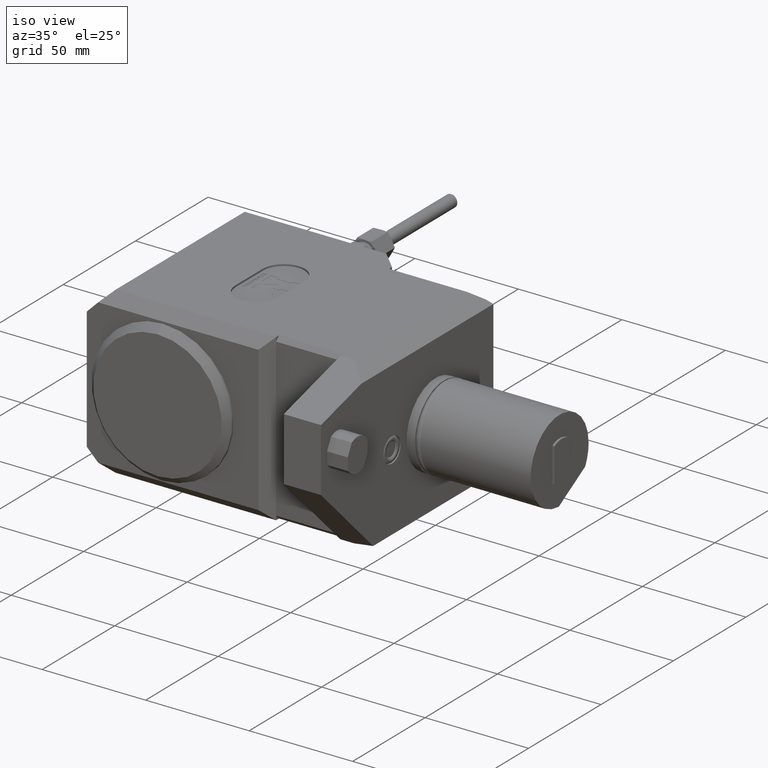
[diagram: clean part render]
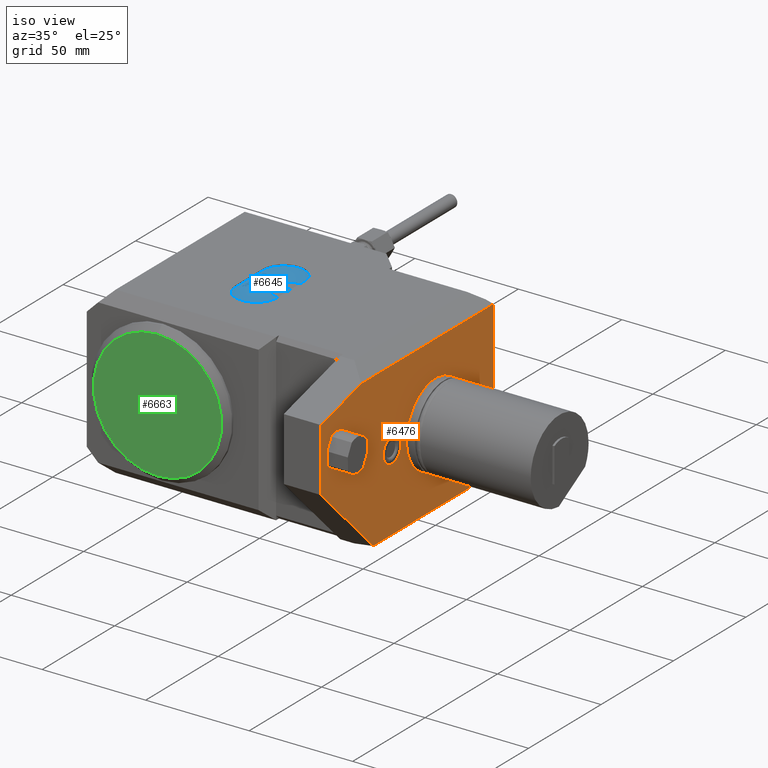
[diagram: same view with three faces highlighted in distinct colors, each labeled with its STEP entity id]
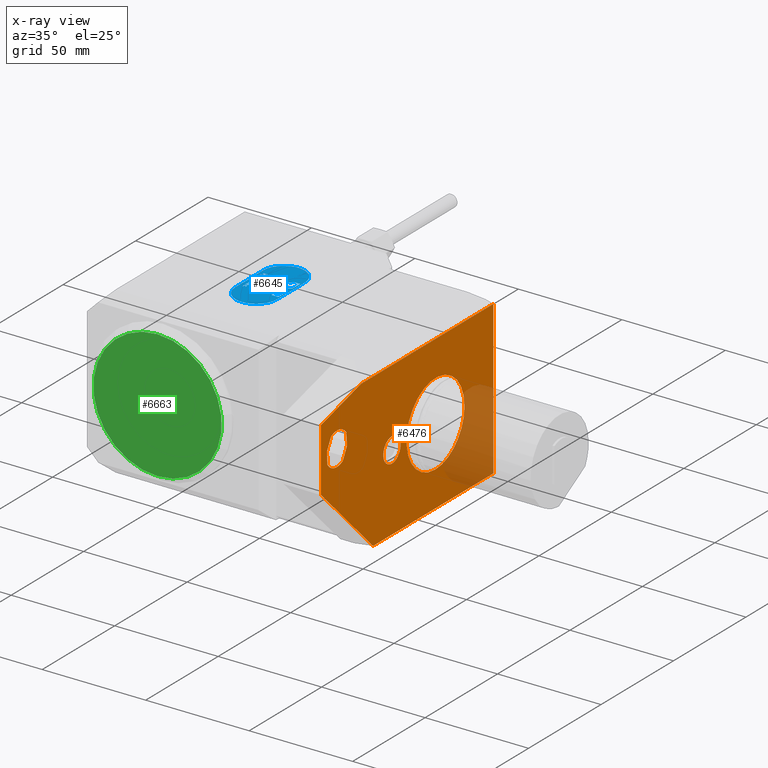
[diagram: x-ray of the same camera — body ghosted, the three highlighted faces saturated]
A machine part, iso view with three faces highlighted in distinct colors.
The next image is the same camera in x-ray (body ghosted, the three faces saturated) — at least one of them is partly hidden behind the body in this view.
Their STEP definitions:

[orange] entity #6476 — the highlighted planar face has unit normal (1, -0, 0).
#316=LINE('',#9708,#872);
#318=LINE('',#9712,#874);
#321=LINE('',#9718,#877);
#326=LINE('',#9729,#882);
#330=LINE('',#9737,#886);
#347=LINE('',#9770,#903);
#348=LINE('',#9775,#904);
#349=LINE('',#9777,#905);
#350=LINE('',#9781,#906);
#351=LINE('',#9782,#907);
#872=VECTOR('',#7694,1000.);
#874=VECTOR('',#7698,1000.);
#877=VECTOR('',#7703,1000.);
#882=VECTOR('',#7710,1000.);
#886=VECTOR('',#7716,1000.);
#903=VECTOR('',#7743,1000.);
#904=VECTOR('',#7746,1000.);
#905=VECTOR('',#7747,1000.);
#906=VECTOR('',#7750,1000.);
#907=VECTOR('',#7751,1000.);
#1403=PLANE('',#6920);
#1876=ORIENTED_EDGE('',*,*,#3683,.T.);
#1877=ORIENTED_EDGE('',*,*,#3684,.F.);
#1878=ORIENTED_EDGE('',*,*,#3685,.T.);
#1879=ORIENTED_EDGE('',*,*,#3686,.T.);
#1880=ORIENTED_EDGE('',*,*,#3687,.F.);
#1881=ORIENTED_EDGE('',*,*,#3688,.T.);
#1882=ORIENTED_EDGE('',*,*,#3666,.F.);
#1883=ORIENTED_EDGE('',*,*,#3662,.T.);
#1884=ORIENTED_EDGE('',*,*,#3689,.T.);
#1885=ORIENTED_EDGE('',*,*,#3657,.F.);
#1886=ORIENTED_EDGE('',*,*,#3654,.F.);
#1887=ORIENTED_EDGE('',*,*,#3652,.F.);
#1888=ORIENTED_EDGE('',*,*,#3690,.T.);
#1889=ORIENTED_EDGE('',*,*,#3650,.F.);
#3650=EDGE_CURVE('',#4581,#4581,#5167,.T.);
#3652=EDGE_CURVE('',#4582,#4583,#316,.T.);
#3654=EDGE_CURVE('',#4583,#4584,#318,.T.);
#3657=EDGE_CURVE('',#4584,#4586,#321,.T.);
#3662=EDGE_CURVE('',#4591,#4590,#326,.T.);
#3666=EDGE_CURVE('',#4591,#4582,#330,.T.);
#3683=EDGE_CURVE('',#4605,#4606,#347,.T.);
#3684=EDGE_CURVE('',#4607,#4606,#5168,.F.);
#3685=EDGE_CURVE('',#4607,#4608,#348,.T.);
#3686=EDGE_CURVE('',#4608,#4609,#349,.T.);
#3687=EDGE_CURVE('',#4610,#4609,#5169,.F.);
#3688=EDGE_CURVE('',#4610,#4605,#350,.T.);
#3689=EDGE_CURVE('',#4590,#4586,#351,.T.);
#3690=EDGE_CURVE('',#4611,#4611,#5170,.T.);
#4581=VERTEX_POINT('',#9704);
#4582=VERTEX_POINT('',#9707);
#4583=VERTEX_POINT('',#9709);
#4584=VERTEX_POINT('',#9713);
#4586=VERTEX_POINT('',#9719);
#4590=VERTEX_POINT('',#9728);
#4591=VERTEX_POINT('',#9730);
#4605=VERTEX_POINT('',#9771);
#4606=VERTEX_POINT('',#9772);
#4607=VERTEX_POINT('',#9774);
#4608=VERTEX_POINT('',#9776);
#4609=VERTEX_POINT('',#9778);
#4610=VERTEX_POINT('',#9780);
#4611=VERTEX_POINT('',#9784);
#5167=CIRCLE('',#6910,20.);
#5168=CIRCLE('',#6921,8.);
#5169=CIRCLE('',#6922,8.);
#5170=CIRCLE('',#6923,6.);
#5429=EDGE_LOOP('',(#1876,#1877,#1878,#1879,#1880,#1881));
#5430=EDGE_LOOP('',(#1882,#1883,#1884,#1885,#1886,#1887));
#5431=EDGE_LOOP('',(#1888));
#5432=EDGE_LOOP('',(#1889));
#5895=FACE_BOUND('',#5429,.T.);
#5896=FACE_BOUND('',#5430,.T.);
#5897=FACE_BOUND('',#5431,.T.);
#5898=FACE_BOUND('',#5432,.T.);
#6476=ADVANCED_FACE('',(#5895,#5896,#5897,#5898),#1403,.T.);
#6910=AXIS2_PLACEMENT_3D('',#9703,#7689,#7690);
#6920=AXIS2_PLACEMENT_3D('',#9769,#7741,#7742);
#6921=AXIS2_PLACEMENT_3D('',#9773,#7744,#7745);
#6922=AXIS2_PLACEMENT_3D('',#9779,#7748,#7749);
#6923=AXIS2_PLACEMENT_3D('',#9783,#7752,#7753);
#7689=DIRECTION('',(1.,-3.74927562856021E-33,6.12303176911189E-17));
#7690=DIRECTION('',(6.12303176911189E-17,0.,-1.));
#7694=DIRECTION('',(-6.12303176911189E-17,0.,1.));
#7698=DIRECTION('',(-1.58475723561394E-17,0.965925826289068,0.258819045102521));
#7703=DIRECTION('',(0.,1.,0.));
#7710=DIRECTION('',(0.,1.,0.));
#7716=DIRECTION('',(-4.32963728535968E-17,-0.707106781186548,0.707106781186548));
#7741=DIRECTION('',(1.,-3.74927562856021E-33,6.12303176911189E-17));
#7742=DIRECTION('',(6.12303176911189E-17,6.12323399573677E-17,-1.));
#7743=DIRECTION('',(-7.93735907606289E-18,-0.460819484650431,-0.887493888748824));
#7744=DIRECTION('',(-1.,-5.02253243704925E-17,3.5022401351623E-17));
#7745=DIRECTION('',(-2.33807550933174E-17,-0.215417120660777,-0.976522126798067));
#7746=DIRECTION('',(3.72307912894869E-17,-0.0446655641082858,0.999001995685138));
#7747=DIRECTION('',(7.93735907606299E-18,0.460819484650431,0.887493888748824));
#7748=DIRECTION('',(-1.,-5.02253243704925E-17,3.5022401351623E-17));
#7749=DIRECTION('',(-2.33807550933174E-17,-0.215417120660777,-0.976522126798067));
#7750=DIRECTION('',(-3.7230791289487E-17,0.0446655641082858,-0.999001995685138));
#7751=DIRECTION('',(-6.12303176911189E-17,0.,1.));
#7752=DIRECTION('',(-1.,3.74927562856021E-33,-6.12303176911189E-17));
#7753=DIRECTION('',(6.12303176911189E-17,6.12323399573677E-17,-1.));
#9703=CARTESIAN_POINT('',(0.,0.,0.));
#9704=CARTESIAN_POINT('',(1.22460635382238E-15,0.,-20.));
#9707=CARTESIAN_POINT('',(3.06151588455588E-17,-79.,-0.999999999999984));
#9708=CARTESIAN_POINT('',(1.53075794227797E-15,-79.,-25.));
#9709=CARTESIAN_POINT('',(-9.04677377358467E-16,-79.,29.5499814951862));
#9712=CARTESIAN_POINT('',(-3.25413578685274E-15,9.06088913245534,53.1458256229943));
#9713=CARTESIAN_POINT('',(-2.2655217545714E-15,-51.1961524227067,37.));
#9718=CARTESIAN_POINT('',(3.46944695195361E-15,-140.11662888251,37.));
#9719=CARTESIAN_POINT('',(-6.41274211529101E-15,40.,37.));
#9728=CARTESIAN_POINT('',(3.46944695195361E-15,40.,-37.));
#9729=CARTESIAN_POINT('',(3.46944695195361E-15,-140.11662888251,-37.));
#9730=CARTESIAN_POINT('',(4.60220782923931E-15,-43.,-37.));
#9737=CARTESIAN_POINT('',(4.13304644415052E-15,-12.5,-67.5));
#9769=CARTESIAN_POINT('',(1.53075794227797E-15,30.,-25.));
#9770=CARTESIAN_POINT('',(0.,-62.2973992727412,11.3099271075818));
#9771=CARTESIAN_POINT('',(-8.26124354227628E-16,-61.1643451124135,13.4920801553746));
#9772=CARTESIAN_POINT('',(4.23135742816056E-16,-63.9695943339361,8.08944067625784));
#9773=CARTESIAN_POINT('',(0.,-68.,15.));
#9774=CARTESIAN_POINT('',(-6.3841620504812E-16,-74.5637522378132,10.4264721974604));
#9775=CARTESIAN_POINT('',(0.,-74.7836335436549,15.3443965030211));
#9776=CARTESIAN_POINT('',(0.,-74.8356548875865,16.5079198446254));
#9777=CARTESIAN_POINT('',(0.,-74.2989450221681,17.5415712883168));
#9778=CARTESIAN_POINT('',(-1.34159050818284E-15,-72.030405666064,21.9105593237422));
#9779=CARTESIAN_POINT('',(0.,-68.,15.));
#9780=CARTESIAN_POINT('',(-2.80038560318667E-16,-61.4362477621869,19.5735278025396));
#9781=CARTESIAN_POINT('',(0.,-61.2741679496025,15.9484072098726));
#9782=CARTESIAN_POINT('',(-6.93889390390723E-15,40.,40.));
#9783=CARTESIAN_POINT('',(1.69785183912934E-31,-30.,-5.3270983071148E-15));
#9784=CARTESIAN_POINT('',(3.67381906146714E-16,-30.,-6.00000000000001));

[blue] entity #6645 — the highlighted planar face has unit normal (-0, 0, 1).
#397=LINE('',#10213,#953);
#400=LINE('',#10219,#956);
#403=LINE('',#10227,#959);
#405=LINE('',#10231,#961);
#407=LINE('',#10235,#963);
#410=LINE('',#10243,#966);
#421=LINE('',#10270,#977);
#424=LINE('',#10276,#980);
#426=LINE('',#10280,#982);
#428=LINE('',#10284,#984);
#430=LINE('',#10288,#986);
#433=LINE('',#10296,#989);
#435=LINE('',#10300,#991);
#437=LINE('',#10304,#993);
#440=LINE('',#10312,#996);
#442=LINE('',#10316,#998);
#454=LINE('',#10349,#1010);
#456=LINE('',#10353,#1012);
#459=LINE('',#10361,#1015);
#461=LINE('',#10365,#1017);
#463=LINE('',#10369,#1019);
#466=LINE('',#10377,#1022);
#468=LINE('',#10381,#1024);
#470=LINE('',#10385,#1026);
#473=LINE('',#10395,#1029);
#482=LINE('',#10418,#1038);
#485=LINE('',#10424,#1041);
#487=LINE('',#10428,#1043);
#489=LINE('',#10432,#1045);
#492=LINE('',#10440,#1048);
#494=LINE('',#10444,#1050);
#496=LINE('',#10448,#1052);
#499=LINE('',#10456,#1055);
#504=LINE('',#10467,#1060);
#507=LINE('',#10473,#1063);
#509=LINE('',#10477,#1065);
#511=LINE('',#10481,#1067);
#520=LINE('',#10514,#1076);
#523=LINE('',#10523,#1079);
#529=LINE('',#10544,#1085);
#531=LINE('',#10548,#1087);
#533=LINE('',#10554,#1089);
#542=LINE('',#10581,#1098);
#545=LINE('',#10590,#1101);
#554=LINE('',#10610,#1110);
#557=LINE('',#10616,#1113);
#559=LINE('',#10620,#1115);
#561=LINE('',#10624,#1117);
#563=LINE('',#10628,#1119);
#565=LINE('',#10632,#1121);
#567=LINE('',#10636,#1123);
#569=LINE('',#10640,#1125);
#584=LINE('',#10684,#1140);
#593=LINE('',#10702,#1149);
#596=LINE('',#10710,#1152);
#599=LINE('',#10718,#1155);
#601=LINE('',#10722,#1157);
#603=LINE('',#10726,#1159);
#624=LINE('',#10769,#1180);
#627=LINE('',#10775,#1183);
#629=LINE('',#10779,#1185);
#631=LINE('',#10783,#1187);
#633=LINE('',#10787,#1189);
#635=LINE('',#10791,#1191);
#637=LINE('',#10795,#1193);
#639=LINE('',#10799,#1195);
#641=LINE('',#10803,#1197);
#643=LINE('',#10807,#1199);
#645=LINE('',#10811,#1201);
#647=LINE('',#10815,#1203);
#649=LINE('',#10819,#1205);
#651=LINE('',#10823,#1207);
#653=LINE('',#10827,#1209);
#655=LINE('',#10831,#1211);
#657=LINE('',#10835,#1213);
#659=LINE('',#10839,#1215);
#661=LINE('',#10843,#1217);
#663=LINE('',#10847,#1219);
#664=LINE('',#10849,#1220);
#669=LINE('',#10864,#1225);
#953=VECTOR('',#7931,1000.);
#956=VECTOR('',#7936,1000.);
#959=VECTOR('',#7945,1000.);
#961=VECTOR('',#7949,1000.);
#963=VECTOR('',#7953,1000.);
#966=VECTOR('',#7962,1000.);
#977=VECTOR('',#7981,1000.);
#980=VECTOR('',#7986,1000.);
#982=VECTOR('',#7990,1000.);
#984=VECTOR('',#7994,1000.);
#986=VECTOR('',#7998,1000.);
#989=VECTOR('',#8007,1000.);
#991=VECTOR('',#8011,1000.);
#993=VECTOR('',#8015,1000.);
#996=VECTOR('',#8024,1000.);
#998=VECTOR('',#8028,1000.);
#1010=VECTOR('',#8052,1000.);
#1012=VECTOR('',#8056,1000.);
#1015=VECTOR('',#8065,1000.);
#1017=VECTOR('',#8069,1000.);
#1019=VECTOR('',#8073,1000.);
#1022=VECTOR('',#8082,1000.);
#1024=VECTOR('',#8086,1000.);
#1026=VECTOR('',#8090,1000.);
#1029=VECTOR('',#8103,1000.);
#1038=VECTOR('',#8120,1000.);
#1041=VECTOR('',#8125,1000.);
#1043=VECTOR('',#8129,1000.);
#1045=VECTOR('',#8133,1000.);
#1048=VECTOR('',#8142,1000.);
#1050=VECTOR('',#8146,1000.);
#1052=VECTOR('',#8150,1000.);
#1055=VECTOR('',#8159,1000.);
#1060=VECTOR('',#8168,1000.);
#1063=VECTOR('',#8173,1000.);
#1065=VECTOR('',#8177,1000.);
#1067=VECTOR('',#8181,1000.);
#1076=VECTOR('',#8214,1000.);
#1079=VECTOR('',#8225,1000.);
#1085=VECTOR('',#8245,1000.);
#1087=VECTOR('',#8249,1000.);
#1089=VECTOR('',#8257,1000.);
#1098=VECTOR('',#8282,1000.);
#1101=VECTOR('',#8293,1000.);
#1110=VECTOR('',#8308,1000.);
#1113=VECTOR('',#8313,1000.);
#1115=VECTOR('',#8317,1000.);
#1117=VECTOR('',#8321,1000.);
#1119=VECTOR('',#8325,1000.);
#1121=VECTOR('',#8329,1000.);
#1123=VECTOR('',#8333,1000.);
#1125=VECTOR('',#8337,1000.);
#1140=VECTOR('',#8370,1000.);
#1149=VECTOR('',#8393,1000.);
#1152=VECTOR('',#8402,1000.);
#1155=VECTOR('',#8411,1000.);
#1157=VECTOR('',#8415,1000.);
#1159=VECTOR('',#8419,1000.);
#1180=VECTOR('',#8444,1000.);
#1183=VECTOR('',#8449,1000.);
#1185=VECTOR('',#8453,1000.);
#1187=VECTOR('',#8457,1000.);
#1189=VECTOR('',#8461,1000.);
#1191=VECTOR('',#8465,1000.);
#1193=VECTOR('',#8469,1000.);
#1195=VECTOR('',#8473,1000.);
#1197=VECTOR('',#8477,1000.);
#1199=VECTOR('',#8481,1000.);
#1201=VECTOR('',#8485,1000.);
#1203=VECTOR('',#8489,1000.);
#1205=VECTOR('',#8493,1000.);
#1207=VECTOR('',#8497,1000.);
#1209=VECTOR('',#8501,1000.);
#1211=VECTOR('',#8505,1000.);
#1213=VECTOR('',#8509,1000.);
#1215=VECTOR('',#8513,1000.);
#1217=VECTOR('',#8517,1000.);
#1219=VECTOR('',#8521,1000.);
#1220=VECTOR('',#8524,1000.);
#1225=VECTOR('',#8537,1000.);
#1535=PLANE('',#7160);
#2616=ORIENTED_EDGE('',*,*,#3832,.F.);
#2617=ORIENTED_EDGE('',*,*,#3809,.F.);
#2618=ORIENTED_EDGE('',*,*,#3812,.F.);
#2619=ORIENTED_EDGE('',*,*,#3814,.F.);
#2620=ORIENTED_EDGE('',*,*,#3816,.F.);
#2621=ORIENTED_EDGE('',*,*,#3818,.F.);
#2622=ORIENTED_EDGE('',*,*,#3820,.F.);
#2623=ORIENTED_EDGE('',*,*,#3822,.F.);
#2624=ORIENTED_EDGE('',*,*,#3824,.F.);
#2625=ORIENTED_EDGE('',*,*,#3826,.F.);
#2626=ORIENTED_EDGE('',*,*,#3828,.F.);
#2627=ORIENTED_EDGE('',*,*,#3830,.F.);
#2628=ORIENTED_EDGE('',*,*,#3942,.T.);
#2629=ORIENTED_EDGE('',*,*,#3947,.T.);
#2630=ORIENTED_EDGE('',*,*,#3946,.T.);
#2631=ORIENTED_EDGE('',*,*,#3944,.T.);
#2632=ORIENTED_EDGE('',*,*,#3848,.T.);
#2633=ORIENTED_EDGE('',*,*,#3871,.T.);
#2634=ORIENTED_EDGE('',*,*,#3870,.T.);
#2635=ORIENTED_EDGE('',*,*,#3868,.T.);
#2636=ORIENTED_EDGE('',*,*,#3866,.T.);
#2637=ORIENTED_EDGE('',*,*,#3864,.T.);
#2638=ORIENTED_EDGE('',*,*,#3862,.T.);
#2639=ORIENTED_EDGE('',*,*,#3860,.T.);
#2640=ORIENTED_EDGE('',*,*,#3858,.T.);
#2641=ORIENTED_EDGE('',*,*,#3856,.T.);
#2642=ORIENTED_EDGE('',*,*,#3854,.T.);
#2643=ORIENTED_EDGE('',*,*,#3852,.T.);
#2644=ORIENTED_EDGE('',*,*,#3850,.T.);
#2645=ORIENTED_EDGE('',*,*,#3913,.F.);
#2646=ORIENTED_EDGE('',*,*,#3906,.F.);
#2647=ORIENTED_EDGE('',*,*,#3909,.F.);
#2648=ORIENTED_EDGE('',*,*,#3911,.F.);
#2649=ORIENTED_EDGE('',*,*,#3915,.T.);
#2650=ORIENTED_EDGE('',*,*,#4031,.F.);
#2651=ORIENTED_EDGE('',*,*,#4010,.F.);
#2652=ORIENTED_EDGE('',*,*,#4019,.F.);
#2653=ORIENTED_EDGE('',*,*,#4021,.F.);
#2654=ORIENTED_EDGE('',*,*,#4023,.F.);
#2655=ORIENTED_EDGE('',*,*,#4025,.F.);
#2656=ORIENTED_EDGE('',*,*,#4027,.F.);
#2657=ORIENTED_EDGE('',*,*,#4029,.F.);
#2658=ORIENTED_EDGE('',*,*,#4091,.F.);
#2659=ORIENTED_EDGE('',*,*,#4052,.F.);
#2660=ORIENTED_EDGE('',*,*,#4055,.F.);
#2661=ORIENTED_EDGE('',*,*,#4057,.F.);
#2662=ORIENTED_EDGE('',*,*,#4059,.F.);
#2663=ORIENTED_EDGE('',*,*,#4061,.F.);
#2664=ORIENTED_EDGE('',*,*,#4063,.F.);
#2665=ORIENTED_EDGE('',*,*,#4065,.F.);
#2666=ORIENTED_EDGE('',*,*,#4067,.F.);
#2667=ORIENTED_EDGE('',*,*,#4069,.F.);
#2668=ORIENTED_EDGE('',*,*,#4071,.F.);
#2669=ORIENTED_EDGE('',*,*,#4073,.F.);
#2670=ORIENTED_EDGE('',*,*,#4075,.F.);
#2671=ORIENTED_EDGE('',*,*,#4077,.F.);
#2672=ORIENTED_EDGE('',*,*,#4079,.F.);
#2673=ORIENTED_EDGE('',*,*,#4081,.F.);
#2674=ORIENTED_EDGE('',*,*,#4083,.F.);
#2675=ORIENTED_EDGE('',*,*,#4085,.F.);
#2676=ORIENTED_EDGE('',*,*,#4087,.F.);
#2677=ORIENTED_EDGE('',*,*,#4089,.F.);
#2678=ORIENTED_EDGE('',*,*,#4102,.T.);
#2679=ORIENTED_EDGE('',*,*,#4099,.T.);
#2680=ORIENTED_EDGE('',*,*,#4096,.T.);
#2681=ORIENTED_EDGE('',*,*,#4092,.T.);
#2682=ORIENTED_EDGE('',*,*,#3974,.T.);
#2683=ORIENTED_EDGE('',*,*,#3989,.T.);
#2684=ORIENTED_EDGE('',*,*,#3987,.T.);
#2685=ORIENTED_EDGE('',*,*,#3985,.T.);
#2686=ORIENTED_EDGE('',*,*,#3983,.T.);
#2687=ORIENTED_EDGE('',*,*,#3981,.T.);
#2688=ORIENTED_EDGE('',*,*,#3979,.T.);
#2689=ORIENTED_EDGE('',*,*,#3977,.T.);
#2690=ORIENTED_EDGE('',*,*,#3925,.T.);
#2691=ORIENTED_EDGE('',*,*,#3933,.T.);
#2692=ORIENTED_EDGE('',*,*,#3931,.T.);
#2693=ORIENTED_EDGE('',*,*,#3928,.T.);
#2694=ORIENTED_EDGE('',*,*,#3901,.F.);
#2695=ORIENTED_EDGE('',*,*,#3882,.F.);
#2696=ORIENTED_EDGE('',*,*,#3885,.F.);
#2697=ORIENTED_EDGE('',*,*,#3887,.F.);
#2698=ORIENTED_EDGE('',*,*,#3889,.F.);
#2699=ORIENTED_EDGE('',*,*,#3891,.F.);
#2700=ORIENTED_EDGE('',*,*,#3893,.F.);
#2701=ORIENTED_EDGE('',*,*,#3895,.F.);
#2702=ORIENTED_EDGE('',*,*,#3897,.F.);
#2703=ORIENTED_EDGE('',*,*,#3899,.F.);
#2704=ORIENTED_EDGE('',*,*,#3957,.T.);
#2705=ORIENTED_EDGE('',*,*,#3965,.T.);
#2706=ORIENTED_EDGE('',*,*,#3963,.T.);
#2707=ORIENTED_EDGE('',*,*,#3960,.T.);
#2708=ORIENTED_EDGE('',*,*,#3796,.F.);
#2709=ORIENTED_EDGE('',*,*,#3781,.F.);
#2710=ORIENTED_EDGE('',*,*,#3784,.F.);
#2711=ORIENTED_EDGE('',*,*,#3786,.F.);
#2712=ORIENTED_EDGE('',*,*,#3788,.F.);
#2713=ORIENTED_EDGE('',*,*,#3790,.F.);
#2714=ORIENTED_EDGE('',*,*,#3792,.F.);
#2715=ORIENTED_EDGE('',*,*,#3794,.F.);
#3781=EDGE_CURVE('',#4676,#4677,#397,.T.);
#3784=EDGE_CURVE('',#4678,#4676,#400,.T.);
#3786=EDGE_CURVE('',#4679,#4678,#5192,.F.);
#3788=EDGE_CURVE('',#4680,#4679,#403,.T.);
#3790=EDGE_CURVE('',#4681,#4680,#405,.T.);
#3792=EDGE_CURVE('',#4682,#4681,#407,.T.);
#3794=EDGE_CURVE('',#4683,#4682,#5193,.T.);
#3796=EDGE_CURVE('',#4677,#4683,#410,.T.);
#3809=EDGE_CURVE('',#4696,#4697,#421,.T.);
#3812=EDGE_CURVE('',#4698,#4696,#424,.T.);
#3814=EDGE_CURVE('',#4699,#4698,#426,.T.);
#3816=EDGE_CURVE('',#4700,#4699,#428,.T.);
#3818=EDGE_CURVE('',#4701,#4700,#430,.T.);
#3820=EDGE_CURVE('',#4702,#4701,#5196,.F.);
#3822=EDGE_CURVE('',#4703,#4702,#433,.T.);
#3824=EDGE_CURVE('',#4704,#4703,#435,.T.);
#3826=EDGE_CURVE('',#4705,#4704,#437,.T.);
#3828=EDGE_CURVE('',#4706,#4705,#5197,.T.);
#3830=EDGE_CURVE('',#4707,#4706,#440,.T.);
#3832=EDGE_CURVE('',#4697,#4707,#442,.T.);
#3848=EDGE_CURVE('',#4721,#4722,#454,.T.);
#3850=EDGE_CURVE('',#4723,#4721,#456,.T.);
#3852=EDGE_CURVE('',#4724,#4723,#5202,.T.);
#3854=EDGE_CURVE('',#4725,#4724,#459,.T.);
#3856=EDGE_CURVE('',#4726,#4725,#461,.T.);
#3858=EDGE_CURVE('',#4727,#4726,#463,.T.);
#3860=EDGE_CURVE('',#4728,#4727,#5203,.T.);
#3862=EDGE_CURVE('',#4729,#4728,#466,.T.);
#3864=EDGE_CURVE('',#4730,#4729,#468,.T.);
#3866=EDGE_CURVE('',#4731,#4730,#470,.T.);
#3868=EDGE_CURVE('',#4732,#4731,#5204,.F.);
#3870=EDGE_CURVE('',#4733,#4732,#5205,.F.);
#3871=EDGE_CURVE('',#4722,#4733,#473,.T.);
#3882=EDGE_CURVE('',#4744,#4745,#482,.T.);
#3885=EDGE_CURVE('',#4746,#4744,#485,.T.);
#3887=EDGE_CURVE('',#4747,#4746,#487,.T.);
#3889=EDGE_CURVE('',#4748,#4747,#489,.T.);
#3891=EDGE_CURVE('',#4749,#4748,#5208,.T.);
#3893=EDGE_CURVE('',#4750,#4749,#492,.T.);
#3895=EDGE_CURVE('',#4751,#4750,#494,.T.);
#3897=EDGE_CURVE('',#4752,#4751,#496,.T.);
#3899=EDGE_CURVE('',#4753,#4752,#5209,.F.);
#3901=EDGE_CURVE('',#4745,#4753,#499,.T.);
#3906=EDGE_CURVE('',#4758,#4759,#504,.T.);
#3909=EDGE_CURVE('',#4760,#4758,#507,.T.);
#3911=EDGE_CURVE('',#4761,#4760,#509,.T.);
#3913=EDGE_CURVE('',#4759,#4761,#511,.T.);
#3915=EDGE_CURVE('',#4763,#4763,#5211,.F.);
#3925=EDGE_CURVE('',#4769,#4771,#5215,.T.);
#3928=EDGE_CURVE('',#4773,#4769,#520,.T.);
#3931=EDGE_CURVE('',#4775,#4773,#5217,.F.);
#3933=EDGE_CURVE('',#4771,#4775,#523,.T.);
#3942=EDGE_CURVE('',#4782,#4783,#529,.T.);
#3944=EDGE_CURVE('',#4784,#4782,#531,.T.);
#3946=EDGE_CURVE('',#4785,#4784,#5221,.F.);
#3947=EDGE_CURVE('',#4783,#4785,#533,.T.);
#3957=EDGE_CURVE('',#4791,#4793,#5225,.T.);
#3960=EDGE_CURVE('',#4795,#4791,#542,.T.);
#3963=EDGE_CURVE('',#4797,#4795,#5227,.F.);
#3965=EDGE_CURVE('',#4793,#4797,#545,.T.);
#3974=EDGE_CURVE('',#4806,#4807,#554,.T.);
#3977=EDGE_CURVE('',#4808,#4806,#557,.T.);
#3979=EDGE_CURVE('',#4809,#4808,#559,.T.);
#3981=EDGE_CURVE('',#4810,#4809,#561,.T.);
#3983=EDGE_CURVE('',#4811,#4810,#563,.T.);
#3985=EDGE_CURVE('',#4812,#4811,#565,.T.);
#3987=EDGE_CURVE('',#4813,#4812,#567,.T.);
#3989=EDGE_CURVE('',#4807,#4813,#569,.T.);
#4010=EDGE_CURVE('',#4834,#4835,#584,.T.);
#4019=EDGE_CURVE('',#4836,#4834,#593,.T.);
#4021=EDGE_CURVE('',#4837,#4836,#5234,.T.);
#4023=EDGE_CURVE('',#4838,#4837,#596,.T.);
#4025=EDGE_CURVE('',#4839,#4838,#5235,.T.);
#4027=EDGE_CURVE('',#4840,#4839,#599,.T.);
#4029=EDGE_CURVE('',#4841,#4840,#601,.T.);
#4031=EDGE_CURVE('',#4835,#4841,#603,.T.);
#4052=EDGE_CURVE('',#4862,#4863,#624,.T.);
#4055=EDGE_CURVE('',#4864,#4862,#627,.T.);
#4057=EDGE_CURVE('',#4865,#4864,#629,.T.);
#4059=EDGE_CURVE('',#4866,#4865,#631,.T.);
#4061=EDGE_CURVE('',#4867,#4866,#633,.T.);
#4063=EDGE_CURVE('',#4868,#4867,#635,.T.);
#4065=EDGE_CURVE('',#4869,#4868,#637,.T.);
#4067=EDGE_CURVE('',#4870,#4869,#639,.T.);
#4069=EDGE_CURVE('',#4871,#4870,#641,.T.);
#4071=EDGE_CURVE('',#4872,#4871,#643,.T.);
#4073=EDGE_CURVE('',#4873,#4872,#645,.T.);
#4075=EDGE_CURVE('',#4874,#4873,#647,.T.);
#4077=EDGE_CURVE('',#4875,#4874,#649,.T.);
#4079=EDGE_CURVE('',#4876,#4875,#651,.T.);
#4081=EDGE_CURVE('',#4877,#4876,#653,.T.);
#4083=EDGE_CURVE('',#4878,#4877,#655,.T.);
#4085=EDGE_CURVE('',#4879,#4878,#657,.T.);
#4087=EDGE_CURVE('',#4880,#4879,#659,.T.);
#4089=EDGE_CURVE('',#4881,#4880,#661,.T.);
#4091=EDGE_CURVE('',#4863,#4881,#663,.T.);
#4092=EDGE_CURVE('',#4882,#4883,#664,.T.);
#4096=EDGE_CURVE('',#4886,#4882,#5236,.T.);
#4099=EDGE_CURVE('',#4888,#4886,#669,.T.);
#4102=EDGE_CURVE('',#4883,#4888,#5238,.T.);
#4676=VERTEX_POINT('',#10214);
#4677=VERTEX_POINT('',#10215);
#4678=VERTEX_POINT('',#10220);
#4679=VERTEX_POINT('',#10224);
#4680=VERTEX_POINT('',#10228);
#4681=VERTEX_POINT('',#10232);
#4682=VERTEX_POINT('',#10236);
#4683=VERTEX_POINT('',#10240);
#4696=VERTEX_POINT('',#10271);
#4697=VERTEX_POINT('',#10272);
#4698=VERTEX_POINT('',#10277);
#4699=VERTEX_POINT('',#10281);
#4700=VERTEX_POINT('',#10285);
#4701=VERTEX_POINT('',#10289);
#4702=VERTEX_POINT('',#10293);
#4703=VERTEX_POINT('',#10297);
#4704=VERTEX_POINT('',#10301);
#4705=VERTEX_POINT('',#10305);
#4706=VERTEX_POINT('',#10309);
#4707=VERTEX_POINT('',#10313);
#4721=VERTEX_POINT('',#10346);
#4722=VERTEX_POINT('',#10348);
#4723=VERTEX_POINT('',#10352);
#4724=VERTEX_POINT('',#10356);
#4725=VERTEX_POINT('',#10360);
#4726=VERTEX_POINT('',#10364);
#4727=VERTEX_POINT('',#10368);
#4728=VERTEX_POINT('',#10372);
#4729=VERTEX_POINT('',#10376);
#4730=VERTEX_POINT('',#10380);
#4731=VERTEX_POINT('',#10384);
#4732=VERTEX_POINT('',#10388);
#4733=VERTEX_POINT('',#10392);
#4744=VERTEX_POINT('',#10419);
#4745=VERTEX_POINT('',#10420);
#4746=VERTEX_POINT('',#10425);
#4747=VERTEX_POINT('',#10429);
#4748=VERTEX_POINT('',#10433);
#4749=VERTEX_POINT('',#10437);
#4750=VERTEX_POINT('',#10441);
#4751=VERTEX_POINT('',#10445);
#4752=VERTEX_POINT('',#10449);
#4753=VERTEX_POINT('',#10453);
#4758=VERTEX_POINT('',#10468);
#4759=VERTEX_POINT('',#10469);
#4760=VERTEX_POINT('',#10474);
#4761=VERTEX_POINT('',#10478);
#4763=VERTEX_POINT('',#10487);
#4769=VERTEX_POINT('',#10503);
#4771=VERTEX_POINT('',#10507);
#4773=VERTEX_POINT('',#10512);
#4775=VERTEX_POINT('',#10518);
#4782=VERTEX_POINT('',#10541);
#4783=VERTEX_POINT('',#10543);
#4784=VERTEX_POINT('',#10547);
#4785=VERTEX_POINT('',#10551);
#4791=VERTEX_POINT('',#10570);
#4793=VERTEX_POINT('',#10574);
#4795=VERTEX_POINT('',#10579);
#4797=VERTEX_POINT('',#10585);
#4806=VERTEX_POINT('',#10611);
#4807=VERTEX_POINT('',#10612);
#4808=VERTEX_POINT('',#10617);
#4809=VERTEX_POINT('',#10621);
#4810=VERTEX_POINT('',#10625);
#4811=VERTEX_POINT('',#10629);
#4812=VERTEX_POINT('',#10633);
#4813=VERTEX_POINT('',#10637);
#4834=VERTEX_POINT('',#10685);
#4835=VERTEX_POINT('',#10686);
#4836=VERTEX_POINT('',#10703);
#4837=VERTEX_POINT('',#10707);
#4838=VERTEX_POINT('',#10711);
#4839=VERTEX_POINT('',#10715);
#4840=VERTEX_POINT('',#10719);
#4841=VERTEX_POINT('',#10723);
#4862=VERTEX_POINT('',#10770);
#4863=VERTEX_POINT('',#10771);
#4864=VERTEX_POINT('',#10776);
#4865=VERTEX_POINT('',#10780);
#4866=VERTEX_POINT('',#10784);
#4867=VERTEX_POINT('',#10788);
#4868=VERTEX_POINT('',#10792);
#4869=VERTEX_POINT('',#10796);
#4870=VERTEX_POINT('',#10800);
#4871=VERTEX_POINT('',#10804);
#4872=VERTEX_POINT('',#10808);
#4873=VERTEX_POINT('',#10812);
#4874=VERTEX_POINT('',#10816);
#4875=VERTEX_POINT('',#10820);
#4876=VERTEX_POINT('',#10824);
#4877=VERTEX_POINT('',#10828);
#4878=VERTEX_POINT('',#10832);
#4879=VERTEX_POINT('',#10836);
#4880=VERTEX_POINT('',#10840);
#4881=VERTEX_POINT('',#10844);
#4882=VERTEX_POINT('',#10850);
#4883=VERTEX_POINT('',#10851);
#4886=VERTEX_POINT('',#10859);
#4888=VERTEX_POINT('',#10865);
#5192=CIRCLE('',#6992,0.255);
#5193=CIRCLE('',#6997,0.68);
#5196=CIRCLE('',#7008,0.255);
#5197=CIRCLE('',#7013,0.68);
#5202=CIRCLE('',#7024,0.255);
#5203=CIRCLE('',#7029,0.255);
#5204=CIRCLE('',#7034,0.68);
#5205=CIRCLE('',#7036,0.68);
#5208=CIRCLE('',#7046,0.6375);
#5209=CIRCLE('',#7051,0.2125);
#5211=CIRCLE('',#7061,0.2125);
#5215=CIRCLE('',#7068,0.255);
#5217=CIRCLE('',#7072,0.68);
#5221=CIRCLE('',#7083,0.68);
#5225=CIRCLE('',#7091,0.255);
#5227=CIRCLE('',#7095,0.68);
#5234=CIRCLE('',#7124,0.518875843159544);
#5235=CIRCLE('',#7127,0.518875843159544);
#5236=CIRCLE('',#7154,10.05);
#5238=CIRCLE('',#7158,10.05);
#5624=EDGE_LOOP('',(#2616,#2617,#2618,#2619,#2620,#2621,#2622,#2623,#2624,
#2625,#2626,#2627));
#5625=EDGE_LOOP('',(#2628,#2629,#2630,#2631));
#5626=EDGE_LOOP('',(#2632,#2633,#2634,#2635,#2636,#2637,#2638,#2639,#2640,
#2641,#2642,#2643,#2644));
#5627=EDGE_LOOP('',(#2645,#2646,#2647,#2648));
#5628=EDGE_LOOP('',(#2649));
#5629=EDGE_LOOP('',(#2650,#2651,#2652,#2653,#2654,#2655,#2656,#2657));
#5630=EDGE_LOOP('',(#2658,#2659,#2660,#2661,#2662,#2663,#2664,#2665,#2666,
#2667,#2668,#2669,#2670,#2671,#2672,#2673,#2674,#2675,#2676,#2677));
#5631=EDGE_LOOP('',(#2678,#2679,#2680,#2681));
#5632=EDGE_LOOP('',(#2682,#2683,#2684,#2685,#2686,#2687,#2688,#2689));
#5633=EDGE_LOOP('',(#2690,#2691,#2692,#2693));
#5634=EDGE_LOOP('',(#2694,#2695,#2696,#2697,#2698,#2699,#2700,#2701,#2702,
#2703));
#5635=EDGE_LOOP('',(#2704,#2705,#2706,#2707));
#5636=EDGE_LOOP('',(#2708,#2709,#2710,#2711,#2712,#2713,#2714,#2715));
#6090=FACE_BOUND('',#5624,.T.);
#6091=FACE_BOUND('',#5625,.T.);
#6092=FACE_BOUND('',#5626,.T.);
#6093=FACE_BOUND('',#5627,.T.);
#6094=FACE_BOUND('',#5628,.T.);
#6095=FACE_BOUND('',#5629,.T.);
#6096=FACE_BOUND('',#5630,.T.);
#6097=FACE_BOUND('',#5631,.T.);
#6098=FACE_BOUND('',#5632,.T.);
#6099=FACE_BOUND('',#5633,.T.);
#6100=FACE_BOUND('',#5634,.T.);
#6101=FACE_BOUND('',#5635,.T.);
#6102=FACE_BOUND('',#5636,.T.);
#6645=ADVANCED_FACE('',(#6090,#6091,#6092,#6093,#6094,#6095,#6096,#6097,
#6098,#6099,#6100,#6101,#6102),#1535,.T.);
#6992=AXIS2_PLACEMENT_3D('',#10223,#7940,#7941);
#6997=AXIS2_PLACEMENT_3D('',#10239,#7957,#7958);
#7008=AXIS2_PLACEMENT_3D('',#10292,#8002,#8003);
#7013=AXIS2_PLACEMENT_3D('',#10308,#8019,#8020);
#7024=AXIS2_PLACEMENT_3D('',#10357,#8060,#8061);
#7029=AXIS2_PLACEMENT_3D('',#10373,#8077,#8078);
#7034=AXIS2_PLACEMENT_3D('',#10389,#8094,#8095);
#7036=AXIS2_PLACEMENT_3D('',#10393,#8099,#8100);
#7046=AXIS2_PLACEMENT_3D('',#10436,#8137,#8138);
#7051=AXIS2_PLACEMENT_3D('',#10452,#8154,#8155);
#7061=AXIS2_PLACEMENT_3D('',#10486,#8188,#8189);
#7068=AXIS2_PLACEMENT_3D('',#10508,#8208,#8209);
#7072=AXIS2_PLACEMENT_3D('',#10520,#8220,#8221);
#7083=AXIS2_PLACEMENT_3D('',#10552,#8253,#8254);
#7091=AXIS2_PLACEMENT_3D('',#10575,#8276,#8277);
#7095=AXIS2_PLACEMENT_3D('',#10587,#8288,#8289);
#7124=AXIS2_PLACEMENT_3D('',#10706,#8397,#8398);
#7127=AXIS2_PLACEMENT_3D('',#10714,#8406,#8407);
#7154=AXIS2_PLACEMENT_3D('',#10858,#8530,#8531);
#7158=AXIS2_PLACEMENT_3D('',#10870,#8542,#8543);
#7160=AXIS2_PLACEMENT_3D('',#10872,#8546,#8547);
#7931=DIRECTION('',(0.819152044288993,-0.573576436351045,6.9182876531209E-16));
#7936=DIRECTION('',(4.49743218737898E-15,-1.,3.84714740605802E-16));
#7940=DIRECTION('',(-5.75186815034638E-16,3.847147406058E-16,1.));
#7941=DIRECTION('',(1.02695629777827E-15,-1.,3.847147406058E-16));
#7945=DIRECTION('',(-2.86793083499788E-16,1.,-3.847147406058E-16));
#7949=DIRECTION('',(0.573576436351045,0.819152044288993,1.47737373683251E-17));
#7953=DIRECTION('',(1.0112260327407E-15,-1.,3.847147406058E-16));
#7957=DIRECTION('',(-5.75186815034638E-16,3.847147406058E-16,1.));
#7958=DIRECTION('',(1.02695629777827E-15,-1.,3.847147406058E-16));
#7962=DIRECTION('',(-5.31321018927754E-16,1.,-3.847147406058E-16));
#7981=DIRECTION('',(1.,1.02695629777827E-15,5.75186815034638E-16));
#7986=DIRECTION('',(-1.02695629777827E-15,1.,-3.847147406058E-16));
#7990=DIRECTION('',(1.,1.02695629777827E-15,5.75186815034638E-16));
#7994=DIRECTION('',(1.02695629777827E-15,-1.,3.847147406058E-16));
#7998=DIRECTION('',(1.,1.02695629777827E-15,5.75186815034638E-16));
#8002=DIRECTION('',(-5.75186815034638E-16,3.847147406058E-16,1.));
#8003=DIRECTION('',(1.02695629777827E-15,-1.,3.847147406058E-16));
#8007=DIRECTION('',(-1.46063716677247E-15,1.,-3.84714740605801E-16));
#8011=DIRECTION('',(1.,1.02695629777827E-15,5.75186815034638E-16));
#8015=DIRECTION('',(9.24709575034048E-16,-1.,3.847147406058E-16));
#8019=DIRECTION('',(-5.75186815034638E-16,3.847147406058E-16,1.));
#8020=DIRECTION('',(1.02695629777827E-15,-1.,3.847147406058E-16));
#8024=DIRECTION('',(-1.,-1.02695629777827E-15,-5.75186815034638E-16));
#8028=DIRECTION('',(-0.258819045102522,0.965925826289069,-5.20475205928068E-16));
#8052=DIRECTION('',(-1.02695629777827E-15,1.,-3.847147406058E-16));
#8056=DIRECTION('',(-1.,-1.02695629777827E-15,-5.75186815034638E-16));
#8060=DIRECTION('',(-5.75186815034638E-16,3.847147406058E-16,1.));
#8061=DIRECTION('',(1.02695629777827E-15,-1.,3.847147406058E-16));
#8065=DIRECTION('',(1.,1.02695629777827E-15,5.75186815034638E-16));
#8069=DIRECTION('',(-1.02695629777827E-15,1.,-3.847147406058E-16));
#8073=DIRECTION('',(-1.,-1.02695629777827E-15,-5.75186815034638E-16));
#8077=DIRECTION('',(-5.75186815034638E-16,3.847147406058E-16,1.));
#8078=DIRECTION('',(1.02695629777827E-15,-1.,3.847147406058E-16));
#8082=DIRECTION('',(1.,1.02695629777827E-15,5.75186815034638E-16));
#8086=DIRECTION('',(-1.02695629777827E-15,1.,-3.847147406058E-16));
#8090=DIRECTION('',(-1.,-9.1853608052972E-16,-5.75186815034638E-16));
#8094=DIRECTION('',(-5.75186815034638E-16,3.847147406058E-16,1.));
#8095=DIRECTION('',(1.02695629777827E-15,-1.,3.847147406058E-16));
#8099=DIRECTION('',(-5.75186815034638E-16,3.847147406058E-16,1.));
#8100=DIRECTION('',(1.02695629777827E-15,-1.,3.847147406058E-16));
#8103=DIRECTION('',(1.,1.02695629777827E-15,5.75186815034638E-16));
#8120=DIRECTION('',(9.8358821087885E-16,-1.,3.847147406058E-16));
#8125=DIRECTION('',(-1.,-1.02695629777827E-15,-5.75186815034638E-16));
#8129=DIRECTION('',(-0.258819045102522,0.965925826289068,-5.20475205928068E-16));
#8133=DIRECTION('',(1.,1.02695629777827E-15,5.75186815034638E-16));
#8137=DIRECTION('',(-5.75186815034638E-16,3.847147406058E-16,1.));
#8138=DIRECTION('',(1.02695629777827E-15,-1.,3.847147406058E-16));
#8142=DIRECTION('',(1.,1.89431803576667E-15,5.75186815034638E-16));
#8146=DIRECTION('',(9.8358821087885E-16,-1.,3.847147406058E-16));
#8150=DIRECTION('',(-1.,7.07767178198535E-16,-5.75186815034639E-16));
#8154=DIRECTION('',(-5.75186815034638E-16,3.847147406058E-16,1.));
#8155=DIRECTION('',(1.02695629777827E-15,-1.,3.847147406058E-16));
#8159=DIRECTION('',(1.,-7.07767178198535E-16,5.75186815034639E-16));
#8168=DIRECTION('',(-1.,-1.02695629777827E-15,-5.75186815034638E-16));
#8173=DIRECTION('',(-0.258819045102522,0.965925826289069,-5.20475205928068E-16));
#8177=DIRECTION('',(1.,1.02695629777827E-15,5.75186815034638E-16));
#8181=DIRECTION('',(9.86057608680581E-16,-1.,3.847147406058E-16));
#8188=DIRECTION('',(-5.75186815034638E-16,3.847147406058E-16,1.));
#8189=DIRECTION('',(1.02695629777827E-15,-1.,3.847147406058E-16));
#8208=DIRECTION('',(-5.75186815034638E-16,3.847147406058E-16,1.));
#8209=DIRECTION('',(1.02695629777827E-15,-1.,3.847147406058E-16));
#8214=DIRECTION('',(-0.4226182617407,0.90630778703665,-5.9175441714493E-16));
#8220=DIRECTION('',(-5.75186815034638E-16,3.847147406058E-16,1.));
#8221=DIRECTION('',(1.02695629777827E-15,-1.,3.847147406058E-16));
#8225=DIRECTION('',(-0.661437827766147,-0.750000000000001,-9.19142620418899E-17));
#8245=DIRECTION('',(-1.02942569558E-15,1.,-3.847147406058E-16));
#8249=DIRECTION('',(-1.,-1.02695629777827E-15,-5.75186815034638E-16));
#8253=DIRECTION('',(-5.75186815034638E-16,3.847147406058E-16,1.));
#8254=DIRECTION('',(1.02695629777827E-15,-1.,3.847147406058E-16));
#8257=DIRECTION('',(1.,-1.08587510026141E-14,5.75186815034642E-16));
#8276=DIRECTION('',(-5.75186815034638E-16,3.847147406058E-16,1.));
#8277=DIRECTION('',(1.02695629777827E-15,-1.,3.847147406058E-16));
#8282=DIRECTION('',(-0.4226182617407,0.90630778703665,-5.9175441714493E-16));
#8288=DIRECTION('',(-5.75186815034638E-16,3.847147406058E-16,1.));
#8289=DIRECTION('',(1.02695629777827E-15,-1.,3.847147406058E-16));
#8293=DIRECTION('',(-0.661437827766148,-0.750000000000001,-9.19142620418904E-17));
#8308=DIRECTION('',(0.905786011972137,-0.423735413336685,6.84013430956495E-16));
#8313=DIRECTION('',(-0.85819798180033,-0.513318832728588,-2.96142842239636E-16));
#8317=DIRECTION('',(1.02695629777827E-15,-1.,3.847147406058E-16));
#8321=DIRECTION('',(0.854672486436042,0.519167546105525,2.91864937539946E-16));
#8325=DIRECTION('',(0.907521482507716,-0.420005665184408,6.83576761633512E-16));
#8329=DIRECTION('',(0.413922427082866,0.910312157645844,-1.12127783093826E-16));
#8333=DIRECTION('',(-0.910312157645843,0.413922427082866,-6.8284160980973E-16));
#8337=DIRECTION('',(2.88910659926156E-15,-1.,3.84714740605802E-16));
#8370=DIRECTION('',(1.,1.02695629777827E-15,5.75186815034638E-16));
#8393=DIRECTION('',(-1.02695629777827E-15,1.,-3.847147406058E-16));
#8397=DIRECTION('',(-5.75186815034638E-16,3.847147406058E-16,1.));
#8398=DIRECTION('',(-1.02695629777827E-15,1.,-3.847147406058E-16));
#8402=DIRECTION('',(1.,1.02695629777827E-15,5.75186815034638E-16));
#8406=DIRECTION('',(-5.75186815034638E-16,3.847147406058E-16,1.));
#8407=DIRECTION('',(-1.02695629777827E-15,1.,-3.847147406058E-16));
#8411=DIRECTION('',(1.02695629777827E-15,-1.,3.847147406058E-16));
#8415=DIRECTION('',(-1.,-1.02695629777827E-15,-5.75186815034638E-16));
#8419=DIRECTION('',(-0.284970268082962,0.958536356279054,-5.32674206545331E-16));
#8444=DIRECTION('',(-1.,-1.1507084651637E-15,-5.75186815034638E-16));
#8449=DIRECTION('',(1.02695629777827E-15,-1.,3.847147406058E-16));
#8453=DIRECTION('',(-1.,-1.02695629777827E-15,-5.75186815034638E-16));
#8457=DIRECTION('',(-1.02695629777827E-15,1.,-3.847147406058E-16));
#8461=DIRECTION('',(0.835869034479418,0.54892891816559,2.69599801365198E-16));
#8465=DIRECTION('',(-1.,-1.02695629777827E-15,-5.75186815034638E-16));
#8469=DIRECTION('',(1.02695629777827E-15,-1.,3.847147406058E-16));
#8473=DIRECTION('',(-1.,-1.15304341171814E-15,-5.75186815034638E-16));
#8477=DIRECTION('',(-1.02695629777827E-15,1.,-3.847147406058E-16));
#8481=DIRECTION('',(1.,1.02695629777827E-15,5.75186815034638E-16));
#8485=DIRECTION('',(1.02695629777827E-15,-1.,3.847147406058E-16));
#8489=DIRECTION('',(1.,1.02695629777827E-15,5.75186815034638E-16));
#8493=DIRECTION('',(1.02695629777827E-15,-1.,3.847147406058E-16));
#8497=DIRECTION('',(-0.820170613233175,-0.572119013133386,-2.51648705077339E-16));
#8501=DIRECTION('',(1.,1.02695629777827E-15,5.75186815034638E-16));
#8505=DIRECTION('',(-1.02695629777827E-15,1.,-3.847147406058E-16));
#8509=DIRECTION('',(1.,1.02695629777827E-15,5.75186815034638E-16));
#8513=DIRECTION('',(1.02695629777827E-15,-1.,3.847147406058E-16));
#8517=DIRECTION('',(-1.,-1.02695629777827E-15,-5.75186815034638E-16));
#8521=DIRECTION('',(-1.02695629777827E-15,1.,-3.847147406058E-16));
#8524=DIRECTION('',(-1.02695629777827E-15,1.,-3.847147406058E-16));
#8530=DIRECTION('',(-5.75186815034638E-16,3.847147406058E-16,1.));
#8531=DIRECTION('',(-1.02695629777827E-15,1.,-3.847147406058E-16));
#8537=DIRECTION('',(1.02695629777827E-15,-1.,3.847147406058E-16));
#8542=DIRECTION('',(-5.75186815034638E-16,3.847147406058E-16,1.));
#8543=DIRECTION('',(1.02695629777827E-15,-1.,3.847147406058E-16));
#8546=DIRECTION('',(-5.75186815034638E-16,3.847147406058E-16,1.));
#8547=DIRECTION('',(1.02695629777827E-15,-1.,3.847147406058E-16));
#10213=CARTESIAN_POINT('',(-89.9139912978545,-4.80146171156385,39.2));
#10214=CARTESIAN_POINT('',(-87.3484942280323,-6.59784209910831,39.2));
#10215=CARTESIAN_POINT('',(-86.9234942280323,-6.89543030284744,39.2));
#10219=CARTESIAN_POINT('',(-87.3484942280323,9.49999999999996,39.2));
#10220=CARTESIAN_POINT('',(-87.3484942280323,-6.30043030284743,39.2));
#10223=CARTESIAN_POINT('',(-87.6034942280323,-6.30043030284743,39.2));
#10224=CARTESIAN_POINT('',(-87.8584942280323,-6.30043030284743,39.2));
#10227=CARTESIAN_POINT('',(-87.8584942280323,9.49999999999996,39.2));
#10228=CARTESIAN_POINT('',(-87.8584942280323,-6.79846739998204,39.2));
#10231=CARTESIAN_POINT('',(-77.5824550093388,7.87723752739886,39.2));
#10232=CARTESIAN_POINT('',(-88.2834942280323,-7.40543030284743,39.2));
#10235=CARTESIAN_POINT('',(-88.2834942280323,9.49999999999996,39.2));
#10236=CARTESIAN_POINT('',(-88.2834942280323,-6.30043030284744,39.2));
#10239=CARTESIAN_POINT('',(-87.6034942280323,-6.30043030284743,39.2));
#10240=CARTESIAN_POINT('',(-86.9234942280323,-6.30043030284743,39.2));
#10243=CARTESIAN_POINT('',(-86.9234942280323,9.49999999999996,39.2));
#10270=CARTESIAN_POINT('',(-79.9,-3.49543030284743,39.2));
#10271=CARTESIAN_POINT('',(-86.9234942280323,-3.49543030284743,39.2));
#10272=CARTESIAN_POINT('',(-86.2434942280323,-3.49543030284743,39.2));
#10276=CARTESIAN_POINT('',(-86.9234942280323,9.49999999999996,39.2));
#10277=CARTESIAN_POINT('',(-86.9234942280323,-3.92043030284743,39.2));
#10280=CARTESIAN_POINT('',(-79.9,-3.92043030284743,39.2));
#10281=CARTESIAN_POINT('',(-87.3484942280323,-3.92043030284743,39.2));
#10284=CARTESIAN_POINT('',(-87.3484942280323,9.49999999999996,39.2));
#10285=CARTESIAN_POINT('',(-87.3484942280323,-3.49543030284743,39.2));
#10288=CARTESIAN_POINT('',(-79.9,-3.49543030284743,39.2));
#10289=CARTESIAN_POINT('',(-87.6034942280323,-3.49543030284743,39.2));
#10292=CARTESIAN_POINT('',(-87.6034942280323,-3.75043030284743,39.2));
#10293=CARTESIAN_POINT('',(-87.8584942280323,-3.75043030284743,39.2));
#10296=CARTESIAN_POINT('',(-87.8584942280323,9.49999999999996,39.2));
#10297=CARTESIAN_POINT('',(-87.8584942280323,-3.92043030284743,39.2));
#10300=CARTESIAN_POINT('',(-79.9,-3.92043030284743,39.2));
#10301=CARTESIAN_POINT('',(-88.2834942280323,-3.92043030284743,39.2));
#10304=CARTESIAN_POINT('',(-88.2834942280323,9.49999999999996,39.2));
#10305=CARTESIAN_POINT('',(-88.2834942280323,-3.75043030284743,39.2));
#10308=CARTESIAN_POINT('',(-87.6034942280323,-3.75043030284743,39.2));
#10309=CARTESIAN_POINT('',(-87.6034942280323,-3.07043030284743,39.2));
#10312=CARTESIAN_POINT('',(-79.9,-3.07043030284743,39.2));
#10313=CARTESIAN_POINT('',(-86.3573726348155,-3.07043030284743,39.2));
#10316=CARTESIAN_POINT('',(-89.0674182648459,7.04359767925618,39.2));
#10346=CARTESIAN_POINT('',(-88.2834942280323,0.499569697099101,39.2));
#10348=CARTESIAN_POINT('',(-88.2834942280323,0.924569697099102,39.2));
#10349=CARTESIAN_POINT('',(-88.2834942280323,9.49999999999996,39.2));
#10352=CARTESIAN_POINT('',(-87.6034942280323,0.499569697099103,39.2));
#10353=CARTESIAN_POINT('',(-79.9,0.499569697099111,39.2));
#10356=CARTESIAN_POINT('',(-87.6034942280323,-0.0104303029008974,39.2));
#10357=CARTESIAN_POINT('',(-87.6034942280323,0.244569697099102,39.2));
#10360=CARTESIAN_POINT('',(-88.2834942280323,-0.0104303029008975,39.2));
#10361=CARTESIAN_POINT('',(-79.9,-0.0104303029008889,39.2));
#10364=CARTESIAN_POINT('',(-88.2834942280323,-0.435430302900899,39.2));
#10365=CARTESIAN_POINT('',(-88.2834942280323,9.49999999999996,39.2));
#10368=CARTESIAN_POINT('',(-87.6034942280323,-0.435430302900897,39.2));
#10369=CARTESIAN_POINT('',(-79.9,-0.435430302900889,39.2));
#10372=CARTESIAN_POINT('',(-87.6034942280323,-0.945430302900897,39.2));
#10373=CARTESIAN_POINT('',(-87.6034942280323,-0.690430302900897,39.2));
#10376=CARTESIAN_POINT('',(-88.2834942280323,-0.945430302900898,39.2));
#10377=CARTESIAN_POINT('',(-79.9,-0.945430302900889,39.2));
#10380=CARTESIAN_POINT('',(-88.2834942280323,-1.3704303029009,39.2));
#10381=CARTESIAN_POINT('',(-88.2834942280323,9.49999999999996,39.2));
#10384=CARTESIAN_POINT('',(-87.6034942280323,-1.3704303029009,39.2));
#10385=CARTESIAN_POINT('',(-79.9,-1.37043030290089,39.2));
#10388=CARTESIAN_POINT('',(-87.1096888513908,-0.222930302900897,39.2));
#10389=CARTESIAN_POINT('',(-87.6034942280323,-0.690430302900897,39.2));
#10392=CARTESIAN_POINT('',(-87.6034942280323,0.924569697099103,39.2));
#10393=CARTESIAN_POINT('',(-87.6034942280323,0.244569697099102,39.2));
#10395=CARTESIAN_POINT('',(-79.9,0.924569697099111,39.2));
#10418=CARTESIAN_POINT('',(-88.2834942280323,9.49999999999996,39.2));
#10419=CARTESIAN_POINT('',(-88.2834942280323,4.49456969715257,39.2));
#10420=CARTESIAN_POINT('',(-88.2834942280323,4.06956969715257,39.2));
#10424=CARTESIAN_POINT('',(-79.9,4.49456969715258,39.2));
#10425=CARTESIAN_POINT('',(-86.3573726348155,4.49456969715257,39.2));
#10428=CARTESIAN_POINT('',(-87.176168264846,7.55035658944153,39.2));
#10429=CARTESIAN_POINT('',(-86.2434942280323,4.06956969715257,39.2));
#10432=CARTESIAN_POINT('',(-79.9,4.06956969715258,39.2));
#10433=CARTESIAN_POINT('',(-87.0024534640237,4.06956969715257,39.2));
#10436=CARTESIAN_POINT('',(-87.6034942280323,3.85706969715257,39.2));
#10437=CARTESIAN_POINT('',(-87.6034942280323,3.21956969715257,39.2));
#10440=CARTESIAN_POINT('',(-79.9,3.21956969715258,39.2));
#10441=CARTESIAN_POINT('',(-88.2834942280323,3.21956969715256,39.2));
#10444=CARTESIAN_POINT('',(-88.2834942280323,9.49999999999996,39.2));
#10445=CARTESIAN_POINT('',(-88.2834942280323,3.64456969715257,39.2));
#10448=CARTESIAN_POINT('',(-79.9,3.64456969715256,39.2));
#10449=CARTESIAN_POINT('',(-87.6034942280323,3.64456969715257,39.2));
#10452=CARTESIAN_POINT('',(-87.6034942280323,3.85706969715257,39.2));
#10453=CARTESIAN_POINT('',(-87.6034942280323,4.06956969715257,39.2));
#10456=CARTESIAN_POINT('',(-79.9,4.06956969715256,39.2));
#10467=CARTESIAN_POINT('',(-79.9,1.51956969715258,39.2));
#10468=CARTESIAN_POINT('',(-86.9523726348155,1.51956969715257,39.2));
#10469=CARTESIAN_POINT('',(-88.2834942280323,1.51956969715257,39.2));
#10473=CARTESIAN_POINT('',(-88.4750608224718,7.20231937757089,39.2));
#10474=CARTESIAN_POINT('',(-86.8384942280323,1.09456969715257,39.2));
#10477=CARTESIAN_POINT('',(-79.9,1.09456969715257,39.2));
#10478=CARTESIAN_POINT('',(-88.2834942280323,1.09456969715257,39.2));
#10481=CARTESIAN_POINT('',(-88.2834942280323,9.49999999999996,39.2));
#10486=CARTESIAN_POINT('',(-86.4984942280323,1.30706969715257,39.2));
#10487=CARTESIAN_POINT('',(-86.4984942280323,1.09456969715257,39.2));
#10503=CARTESIAN_POINT('',(-87.7112618847762,2.60067818279345,39.2));
#10507=CARTESIAN_POINT('',(-87.7721608741126,2.1783196970991,39.2));
#10508=CARTESIAN_POINT('',(-87.6034942280323,2.3695696970991,39.2));
#10512=CARTESIAN_POINT('',(-87.3161138100486,1.75328040191418,39.2));
#10514=CARTESIAN_POINT('',(-88.9587156898438,5.27585150077697,39.2));
#10518=CARTESIAN_POINT('',(-88.0532719509133,1.8595696970991,39.2));
#10520=CARTESIAN_POINT('',(-87.6034942280323,2.3695696970991,39.2));
#10523=CARTESIAN_POINT('',(-80.6959632553267,10.2019736087799,39.2));
#10541=CARTESIAN_POINT('',(-88.2834942280323,-2.90043030284743,39.2));
#10543=CARTESIAN_POINT('',(-88.2834942280323,-2.47543030284743,39.2));
#10544=CARTESIAN_POINT('',(-88.2834942280323,9.49999999999996,39.2));
#10547=CARTESIAN_POINT('',(-87.6034942280323,-2.90043030284743,39.2));
#10548=CARTESIAN_POINT('',(-79.9,-2.90043030284742,39.2));
#10551=CARTESIAN_POINT('',(-88.2338710994354,-2.47543030284743,39.2));
#10552=CARTESIAN_POINT('',(-87.6034942280323,-2.22043030284743,39.2));
#10554=CARTESIAN_POINT('',(-79.9000000000001,-2.47543030284753,39.2));
#10570=CARTESIAN_POINT('',(-87.7112618847761,-4.53932181715309,39.2));
#10574=CARTESIAN_POINT('',(-87.7721608741126,-4.96168030284743,39.2));
#10575=CARTESIAN_POINT('',(-87.6034942280323,-4.77043030284743,39.2));
#10579=CARTESIAN_POINT('',(-87.3161138100486,-5.38671959803235,39.2));
#10581=CARTESIAN_POINT('',(-91.6934943517581,4.00060326736746,39.2));
#10585=CARTESIAN_POINT('',(-88.0532719509133,-5.28043030284743,39.2));
#10587=CARTESIAN_POINT('',(-87.6034942280323,-4.77043030284743,39.2));
#10590=CARTESIAN_POINT('',(-77.1539636876654,7.07822360880326,39.2));
#10610=CARTESIAN_POINT('',(-87.4405647875713,5.527807118821,39.2));
#10611=CARTESIAN_POINT('',(-87.4405647875713,5.527807118821,39.2));
#10612=CARTESIAN_POINT('',(-86.889110183947,5.26983134825861,39.2));
#10616=CARTESIAN_POINT('',(-86.889110183947,5.85765179270544,39.2));
#10617=CARTESIAN_POINT('',(-86.889110183947,5.85765179270544,39.2));
#10620=CARTESIAN_POINT('',(-86.889110183947,5.85765179270544,39.2));
#10621=CARTESIAN_POINT('',(-86.889110183947,6.3234368248253,39.2));
#10624=CARTESIAN_POINT('',(-86.889110183947,6.3234368248253,39.2));
#10625=CARTESIAN_POINT('',(-87.8709783426454,5.72700475214179,39.2));
#10628=CARTESIAN_POINT('',(-88.8808040565141,6.19435734802938,39.2));
#10629=CARTESIAN_POINT('',(-88.8808040565141,6.19435734802938,39.2));
#10632=CARTESIAN_POINT('',(-89.0634308837752,5.79271827198397,39.2));
#10633=CARTESIAN_POINT('',(-89.0634308837752,5.79271827198397,39.2));
#10636=CARTESIAN_POINT('',(-86.889110183947,4.80404631613875,39.2));
#10637=CARTESIAN_POINT('',(-86.889110183947,4.80404631613875,39.2));
#10640=CARTESIAN_POINT('',(-86.889110183947,5.26983134825861,39.2));
#10684=CARTESIAN_POINT('',(-86.8492225478815,7.14604050344544,39.2));
#10685=CARTESIAN_POINT('',(-86.8492225478815,7.14604050344544,39.2));
#10686=CARTESIAN_POINT('',(-86.107705721216,7.14604050344544,39.2));
#10702=CARTESIAN_POINT('',(-86.8492225478815,6.85728174652644,39.2));
#10703=CARTESIAN_POINT('',(-86.8492225478815,6.85728174652644,39.2));
#10706=CARTESIAN_POINT('',(-87.3680983910411,6.85728174652644,39.2));
#10707=CARTESIAN_POINT('',(-87.3680983910411,6.3384059033669,39.2));
#10710=CARTESIAN_POINT('',(-87.759381813747,6.3384059033669,39.2));
#10711=CARTESIAN_POINT('',(-87.759381813747,6.3384059033669,39.2));
#10714=CARTESIAN_POINT('',(-87.759381813747,6.85728174652644,39.2));
#10715=CARTESIAN_POINT('',(-88.2782576569065,6.85728174652644,39.2));
#10718=CARTESIAN_POINT('',(-88.2782576569065,7.52297257382702,39.2));
#10719=CARTESIAN_POINT('',(-88.2782576569065,7.52297257382702,39.2));
#10722=CARTESIAN_POINT('',(-86.2197666070051,7.52297257382702,39.2));
#10723=CARTESIAN_POINT('',(-86.2197666070051,7.52297257382702,39.2));
#10726=CARTESIAN_POINT('',(-86.107705721216,7.14604050344544,39.2));
#10769=CARTESIAN_POINT('',(-74.1566278026906,6.24632286995513,39.2));
#10770=CARTESIAN_POINT('',(-74.1566278026906,6.24632286995513,39.2));
#10771=CARTESIAN_POINT('',(-81.1654887892377,6.24632286995513,39.2));
#10775=CARTESIAN_POINT('',(-74.1566278026906,7.54426008968607,39.2));
#10776=CARTESIAN_POINT('',(-74.1566278026906,7.54426008968607,39.2));
#10779=CARTESIAN_POINT('',(-70.7170941704036,7.54426008968608,39.2));
#10780=CARTESIAN_POINT('',(-70.7170941704036,7.54426008968608,39.2));
#10783=CARTESIAN_POINT('',(-70.7170941704036,2.38495964125558,39.2));
#10784=CARTESIAN_POINT('',(-70.7170941704036,2.38495964125558,39.2));
#10787=CARTESIAN_POINT('',(-77.2392286995515,-1.89823318385654,39.2));
#10788=CARTESIAN_POINT('',(-77.2392286995515,-1.89823318385654,39.2));
#10791=CARTESIAN_POINT('',(-74.1566278026906,-1.89823318385654,39.2));
#10792=CARTESIAN_POINT('',(-74.1566278026906,-1.89823318385654,39.2));
#10795=CARTESIAN_POINT('',(-74.1566278026906,-0.632744394618863,39.2));
#10796=CARTESIAN_POINT('',(-74.1566278026906,-0.632744394618863,39.2));
#10799=CARTESIAN_POINT('',(-70.7170941704036,-0.63274439461886,39.2));
#10800=CARTESIAN_POINT('',(-70.7170941704036,-0.63274439461886,39.2));
#10803=CARTESIAN_POINT('',(-70.7170941704036,-7.31712107623321,39.2));
#10804=CARTESIAN_POINT('',(-70.7170941704036,-7.31712107623321,39.2));
#10807=CARTESIAN_POINT('',(-74.1566278026906,-7.31712107623322,39.2));
#10808=CARTESIAN_POINT('',(-74.1566278026906,-7.31712107623322,39.2));
#10811=CARTESIAN_POINT('',(-74.1566278026906,-6.01918385650228,39.2));
#10812=CARTESIAN_POINT('',(-74.1566278026906,-6.01918385650228,39.2));
#10815=CARTESIAN_POINT('',(-84.6050224215246,-6.01918385650229,39.2));
#10816=CARTESIAN_POINT('',(-84.6050224215246,-6.01918385650229,39.2));
#10819=CARTESIAN_POINT('',(-84.6050224215247,-2.25516591928255,39.2));
#10820=CARTESIAN_POINT('',(-84.6050224215247,-2.25516591928256,39.2));
#10823=CARTESIAN_POINT('',(-77.9530941704036,2.38495964125557,39.2));
#10824=CARTESIAN_POINT('',(-77.9530941704036,2.38495964125557,39.2));
#10827=CARTESIAN_POINT('',(-81.1654887892377,2.38495964125557,39.2));
#10828=CARTESIAN_POINT('',(-81.1654887892377,2.38495964125557,39.2));
#10831=CARTESIAN_POINT('',(-81.1654887892377,0.924780269058257,39.2));
#10832=CARTESIAN_POINT('',(-81.1654887892377,0.924780269058257,39.2));
#10835=CARTESIAN_POINT('',(-84.6050224215247,0.924780269058254,39.2));
#10836=CARTESIAN_POINT('',(-84.6050224215247,0.924780269058254,39.2));
#10839=CARTESIAN_POINT('',(-84.6050224215247,7.54426008968606,39.2));
#10840=CARTESIAN_POINT('',(-84.6050224215247,7.54426008968606,39.2));
#10843=CARTESIAN_POINT('',(-81.1654887892377,7.54426008968607,39.2));
#10844=CARTESIAN_POINT('',(-81.1654887892377,7.54426008968607,39.2));
#10847=CARTESIAN_POINT('',(-81.1654887892377,6.24632286995513,39.2));
#10849=CARTESIAN_POINT('',(-69.85,-9.50000000000002,39.2));
#10850=CARTESIAN_POINT('',(-69.85,-9.50000000000002,39.2));
#10851=CARTESIAN_POINT('',(-69.85,9.49999999999998,39.2));
#10858=CARTESIAN_POINT('',(-79.9,-9.50000000000003,39.2));
#10859=CARTESIAN_POINT('',(-89.95,-9.50000000000004,39.2));
#10864=CARTESIAN_POINT('',(-89.95,9.49999999999996,39.2));
#10865=CARTESIAN_POINT('',(-89.95,9.49999999999996,39.2));
#10870=CARTESIAN_POINT('',(-79.9,9.49999999999997,39.2));
#10872=CARTESIAN_POINT('',(-79.9,9.49999999999997,39.2));

[green] entity #6663 — the highlighted planar face has unit normal (0, -1, -0).
#1551=PLANE('',#7182);
#2794=ORIENTED_EDGE('',*,*,#4130,.T.);
#4130=EDGE_CURVE('',#4904,#4904,#5244,.T.);
#4904=VERTEX_POINT('',#10932);
#5244=CIRCLE('',#7183,31.);
#5658=EDGE_LOOP('',(#2794));
#6124=FACE_BOUND('',#5658,.T.);
#6663=ADVANCED_FACE('',(#6124),#1551,.T.);
#7182=AXIS2_PLACEMENT_3D('',#10930,#8612,#8613);
#7183=AXIS2_PLACEMENT_3D('',#10931,#8614,#8615);
#8612=DIRECTION('',(3.79079641973877E-16,-1.,-1.95937855870841E-16));
#8613=DIRECTION('',(-6.01244314751836E-16,-1.95937855870841E-16,1.));
#8614=DIRECTION('',(3.79079641973877E-16,-1.,-1.95937855870841E-16));
#8615=DIRECTION('',(-6.01244314751836E-16,-1.95937855870841E-16,1.));
#10930=CARTESIAN_POINT('',(-100.,-49.,0.0299999999999746));
#10931=CARTESIAN_POINT('',(-100.,-49.,0.0299999999999749));
#10932=CARTESIAN_POINT('',(-100.,-49.,31.03));